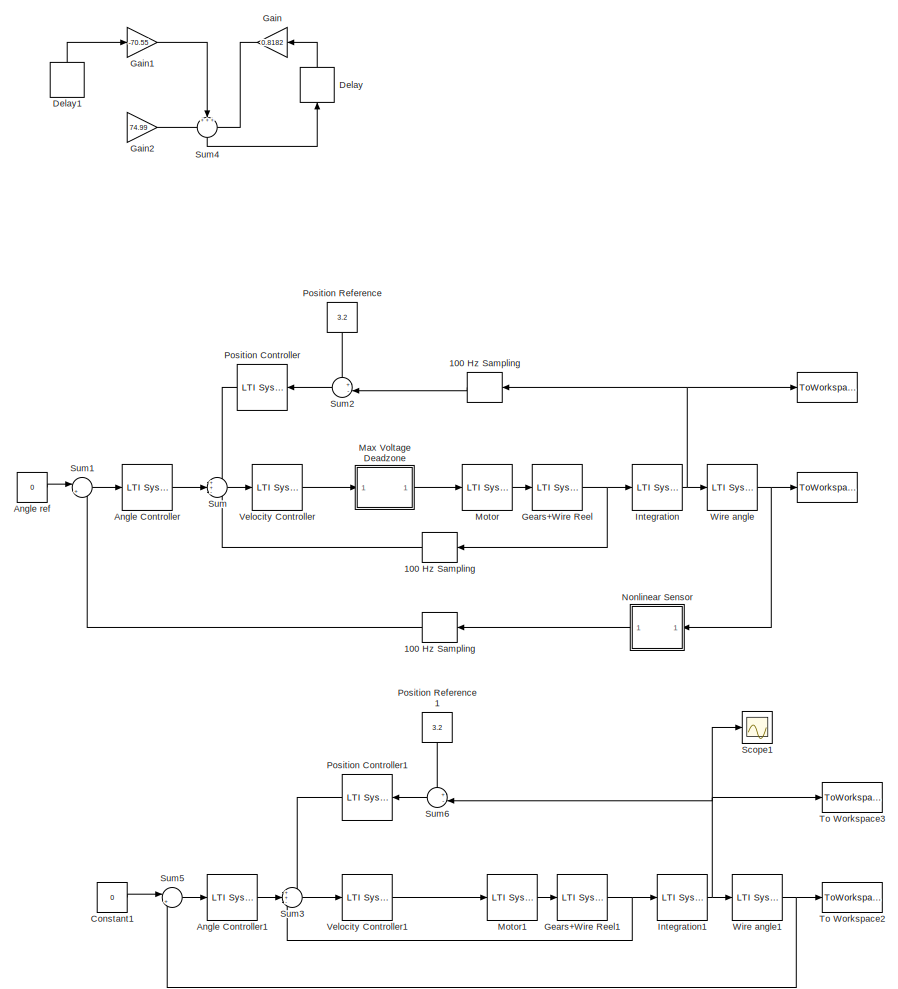
[diagram: root canvas - part 1/3, top left region]
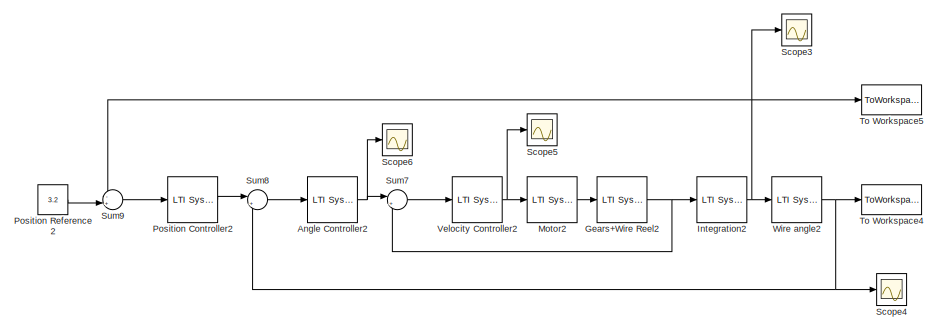
[diagram: root canvas - part 2/3, middle right region]
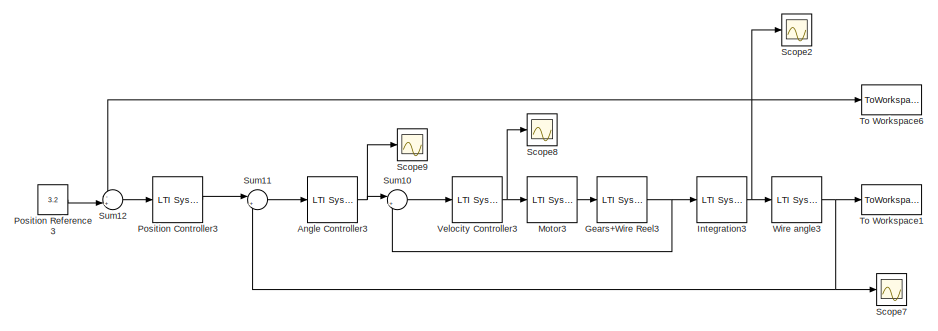
[diagram: root canvas - part 3/3, bottom left region]
MODEL slx_9e25c3253794
KIND model
CONFIG AbsTol = auto
CONFIG FixedStep = .01
CONFIG MaxStep = auto
CONFIG MinStep = auto
CONFIG RelTol = 1e-3
CONFIG SampleTimeConstraint = Unconstrained
CONFIG Solver = ode3
CONFIG SolverMode = Auto
CONFIG SolverName = ode3
CONFIG StartTime = 0.0
CONFIG StopTime = 30
BLOCK [ToWorkspace]   
  FixptAsFi = on
  MaxDataPoints = inf
  Ports = [1]
  SampleTime = -1
  Save2DSignal = 3-D array (concatenate along third dimension)
  SaveFormat = Timeseries
  VariableName = Angle
BLOCK [ToWorkspace]    
  FixptAsFi = on
  MaxDataPoints = inf
  Ports = [1]
  SampleTime = -1
  Save2DSignal = 3-D array (concatenate along third dimension)
  SaveFormat = Timeseries
  VariableName = Position
BLOCK [ZeroOrderHold] 100 Hz Sampling 
  SampleTime = .01
BLOCK [ZeroOrderHold] 100 Hz Sampling  
  SampleTime = .01
BLOCK [ZeroOrderHold] 100 Hz Sampling   
  SampleTime = .01
BLOCK [Reference] Angle Controller  REF=cstblocks/LTI System
  IC = []
  Ports = [1, 1]
  SourceBlock = cstblocks/LTI System
  SourceType = LTI Block
  sys = Ctheta
BLOCK [Reference] Angle Controller1  REF=cstblocks/LTI System
  IC = []
  Ports = [1, 1]
  SourceBlock = cstblocks/LTI System
  SourceType = LTI Block
  sys = Ctheta
BLOCK [Reference] Angle Controller2  REF=cstblocks/LTI System
  IC = []
  Ports = [1, 1]
  SourceBlock = cstblocks/LTI System
  SourceType = LTI Block
  sys = Ctheta
BLOCK [Reference] Angle Controller3  REF=cstblocks/LTI System
  IC = []
  Ports = [1, 1]
  SourceBlock = cstblocks/LTI System
  SourceType = LTI Block
  sys = Ctheta
BLOCK [Constant] Angle ref
  Value = 0
BLOCK [Constant] Constant1
  Value = 0
BLOCK [Delay] Delay
  DelayLength = 1
  InputPortMap = u0
  Ports = [1, 1]
BLOCK [Delay] Delay1
  DelayLength = 1
  InputPortMap = u0
  Ports = [1, 1]
BLOCK [Gain] Gain
  Gain = 0.8182
  OutDataTypeStr = Inherit: Inherit via internal rule
  ParamDataTypeStr = Inherit: Inherit via internal rule
  SaturateOnIntegerOverflow = off
BLOCK [Gain] Gain1
  Gain = -70.55
  OutDataTypeStr = Inherit: Inherit via internal rule
  ParamDataTypeStr = Inherit: Inherit via internal rule
  SaturateOnIntegerOverflow = off
BLOCK [Gain] Gain2
  Gain = 74.99
  OutDataTypeStr = Inherit: Inherit via internal rule
  ParamDataTypeStr = Inherit: Inherit via internal rule
  SaturateOnIntegerOverflow = off
BLOCK [Reference] Gears+Wire Reel  REF=cstblocks/LTI System
  IC = []
  Ports = [1, 1]
  SourceBlock = cstblocks/LTI System
  SourceType = LTI Block
  sys = Grx*rrx
BLOCK [Reference] Gears+Wire Reel1  REF=cstblocks/LTI System
  IC = []
  Ports = [1, 1]
  SourceBlock = cstblocks/LTI System
  SourceType = LTI Block
  sys = Grx*rrx
BLOCK [Reference] Gears+Wire Reel2  REF=cstblocks/LTI System
  IC = []
  Ports = [1, 1]
  SourceBlock = cstblocks/LTI System
  SourceType = LTI Block
  sys = Grx*rrx
BLOCK [Reference] Gears+Wire Reel3  REF=cstblocks/LTI System
  IC = []
  Ports = [1, 1]
  SourceBlock = cstblocks/LTI System
  SourceType = LTI Block
  sys = Grx*rrx
BLOCK [Reference] Integration  REF=cstblocks/LTI System
  IC = []
  Ports = [1, 1]
  SourceBlock = cstblocks/LTI System
  SourceType = LTI Block
  sys = 1/s
BLOCK [Reference] Integration1  REF=cstblocks/LTI System
  IC = []
  Ports = [1, 1]
  SourceBlock = cstblocks/LTI System
  SourceType = LTI Block
  sys = 1/s
BLOCK [Reference] Integration2  REF=cstblocks/LTI System
  IC = []
  Ports = [1, 1]
  SourceBlock = cstblocks/LTI System
  SourceType = LTI Block
  sys = 1/s
BLOCK [Reference] Integration3  REF=cstblocks/LTI System
  IC = []
  Ports = [1, 1]
  SourceBlock = cstblocks/LTI System
  SourceType = LTI Block
  sys = 1/s
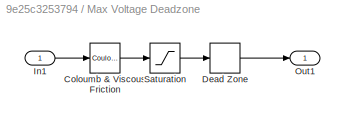
BLOCK [SubSystem] Max Voltage Deadzone
  Ports = [1, 1]
  RequestExecContextInheritance = off
BLOCK [Reference] Max Voltage Deadzone/Coloumb & Viscous Friction  REF=simulink/Discontinuities/Coulomb &
Viscous Friction
  Ports = [1, 1]
  SourceBlock = simulink/Discontinuities/Coulomb &\nViscous Friction
  SourceType = Coulombic and Viscous Friction
  gain = 1
  offset = [4.2]
BLOCK [DeadZone] Max Voltage Deadzone/Dead Zone
  LowerValue = -4.2
  UpperValue = 4.2
BLOCK [Inport] Max Voltage Deadzone/In1
  IconDisplay = Port number
BLOCK [Outport] Max Voltage Deadzone/Out1
  IconDisplay = Port number
BLOCK [Saturate] Max Voltage Deadzone/Saturation
  InputPortMap = u0
  LowerLimit = -12.5
  Ports = [1, 1]
  UpperLimit = 12.5
BLOCK [Reference] Motor  REF=cstblocks/LTI System
  IC = []
  Ports = [1, 1]
  SourceBlock = cstblocks/LTI System
  SourceType = LTI Block
  sys = Mx
BLOCK [Reference] Motor1  REF=cstblocks/LTI System
  IC = []
  Ports = [1, 1]
  SourceBlock = cstblocks/LTI System
  SourceType = LTI Block
  sys = Mx
BLOCK [Reference] Motor2  REF=cstblocks/LTI System
  IC = []
  Ports = [1, 1]
  SourceBlock = cstblocks/LTI System
  SourceType = LTI Block
  sys = Mx
BLOCK [Reference] Motor3  REF=cstblocks/LTI System
  IC = []
  Ports = [1, 1]
  SourceBlock = cstblocks/LTI System
  SourceType = LTI Block
  sys = Mx
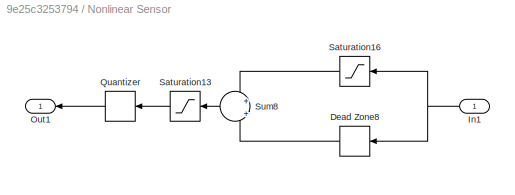
BLOCK [SubSystem] Nonlinear Sensor
  Ports = [1, 1]
  RequestExecContextInheritance = off
BLOCK [DeadZone] Nonlinear Sensor/Dead Zone8
  LowerValue = -0.3387
  UpperValue = 0.3227
BLOCK [Inport] Nonlinear Sensor/In1
  IconDisplay = Port number
BLOCK [Outport] Nonlinear Sensor/Out1
  IconDisplay = Port number
BLOCK [Quantizer] Nonlinear Sensor/Quantizer
  QuantizationInterval = 0.001
BLOCK [Saturate] Nonlinear Sensor/Saturation13
  InputPortMap = u0
  LowerLimit = -0.68
  Ports = [1, 1]
  UpperLimit = 0.664
BLOCK [Saturate] Nonlinear Sensor/Saturation16
  InputPortMap = u0
  LowerLimit = -0.1787
  Ports = [1, 1]
  UpperLimit = .1627
BLOCK [Sum] Nonlinear Sensor/Sum8
  IconShape = round
  InputSameDT = off
  Inputs = +|+
  OutDataTypeStr = Inherit: Inherit via internal rule
  Ports = [2, 1]
  SaturateOnIntegerOverflow = off
BLOCK [Reference] Position Controller  REF=cstblocks/LTI System
  IC = []
  Ports = [1, 1]
  SourceBlock = cstblocks/LTI System
  SourceType = LTI Block
  sys = Cx
BLOCK [Reference] Position Controller1  REF=cstblocks/LTI System
  IC = []
  Ports = [1, 1]
  SourceBlock = cstblocks/LTI System
  SourceType = LTI Block
  sys = Cx
BLOCK [Reference] Position Controller2  REF=cstblocks/LTI System
  IC = []
  Ports = [1, 1]
  SourceBlock = cstblocks/LTI System
  SourceType = LTI Block
  sys = Cx
BLOCK [Reference] Position Controller3  REF=cstblocks/LTI System
  IC = []
  Ports = [1, 1]
  SourceBlock = cstblocks/LTI System
  SourceType = LTI Block
  sys = Cx
BLOCK [Constant] Position Reference
  Value = 3.2
BLOCK [Constant] Position Reference1
  Value = 3.2
BLOCK [Constant] Position Reference2
  Value = 3.2
BLOCK [Constant] Position Reference3
  Value = 3.2
BLOCK [Scope] Scope1
  Floating = off
  NumInputPorts = 1
  Ports = [1]
  SaveName = ScopeData1
BLOCK [Scope] Scope2
  Floating = off
  NumInputPorts = 1
  Ports = [1]
  SaveName = ScopeData2
BLOCK [Scope] Scope3
  Floating = off
  NumInputPorts = 1
  Ports = [1]
BLOCK [Scope] Scope4
  Floating = off
  NumInputPorts = 1
  Ports = [1]
  SaveName = ScopeData3
BLOCK [Scope] Scope5
  Floating = off
  NumInputPorts = 1
  Ports = [1]
  SaveName = ScopeData4
  ZoomMode = yonly
BLOCK [Scope] Scope6
  Floating = off
  NumInputPorts = 1
  Ports = [1]
  SaveName = ScopeData5
  ZoomMode = yonly
BLOCK [Scope] Scope7
  Floating = off
  NumInputPorts = 1
  Ports = [1]
  SaveName = ScopeData6
BLOCK [Scope] Scope8
  Floating = off
  NumInputPorts = 1
  Ports = [1]
  SaveName = ScopeData7
  ZoomMode = yonly
BLOCK [Scope] Scope9
  Floating = off
  NumInputPorts = 1
  Ports = [1]
  SaveName = ScopeData8
  ZoomMode = yonly
BLOCK [Sum] Sum
  IconShape = round
  InputSameDT = off
  Inputs = ++-
  OutDataTypeStr = Inherit: Inherit via internal rule
  Ports = [3, 1]
  SaturateOnIntegerOverflow = off
BLOCK [Sum] Sum1
  IconShape = round
  InputSameDT = off
  Inputs = |+-
  OutDataTypeStr = Inherit: Inherit via internal rule
  Ports = [2, 1]
  SaturateOnIntegerOverflow = off
BLOCK [Sum] Sum10
  IconShape = round
  InputSameDT = off
  Inputs = |+-
  OutDataTypeStr = Inherit: Inherit via internal rule
  Ports = [2, 1]
  SaturateOnIntegerOverflow = off
BLOCK [Sum] Sum11
  IconShape = round
  InputSameDT = off
  Inputs = |++
  OutDataTypeStr = Inherit: Inherit via internal rule
  Ports = [2, 1]
  SaturateOnIntegerOverflow = off
BLOCK [Sum] Sum12
  IconShape = round
  InputSameDT = off
  Inputs = -+|
  OutDataTypeStr = Inherit: Inherit via internal rule
  Ports = [2, 1]
  SaturateOnIntegerOverflow = off
BLOCK [Sum] Sum2
  IconShape = round
  InputSameDT = off
  Inputs = +-|
  OutDataTypeStr = Inherit: Inherit via internal rule
  Ports = [2, 1]
  SaturateOnIntegerOverflow = off
BLOCK [Sum] Sum3
  IconShape = round
  InputSameDT = off
  Inputs = ++-
  OutDataTypeStr = Inherit: Inherit via internal rule
  Ports = [3, 1]
  SaturateOnIntegerOverflow = off
BLOCK [Sum] Sum4
  IconShape = round
  InputSameDT = off
  Inputs = +++
  OutDataTypeStr = Inherit: Inherit via internal rule
  Ports = [3, 1]
  SaturateOnIntegerOverflow = off
BLOCK [Sum] Sum5
  IconShape = round
  InputSameDT = off
  Inputs = |+-
  OutDataTypeStr = Inherit: Inherit via internal rule
  Ports = [2, 1]
  SaturateOnIntegerOverflow = off
BLOCK [Sum] Sum6
  IconShape = round
  InputSameDT = off
  Inputs = +-|
  OutDataTypeStr = Inherit: Inherit via internal rule
  Ports = [2, 1]
  SaturateOnIntegerOverflow = off
BLOCK [Sum] Sum7
  IconShape = round
  InputSameDT = off
  Inputs = |+-
  OutDataTypeStr = Inherit: Inherit via internal rule
  Ports = [2, 1]
  SaturateOnIntegerOverflow = off
BLOCK [Sum] Sum8
  IconShape = round
  InputSameDT = off
  Inputs = |+-
  OutDataTypeStr = Inherit: Inherit via internal rule
  Ports = [2, 1]
  SaturateOnIntegerOverflow = off
BLOCK [Sum] Sum9
  IconShape = round
  InputSameDT = off
  Inputs = -+|
  OutDataTypeStr = Inherit: Inherit via internal rule
  Ports = [2, 1]
  SaturateOnIntegerOverflow = off
BLOCK [ToWorkspace] To Workspace1
  FixptAsFi = on
  MaxDataPoints = inf
  Ports = [1]
  SampleTime = -1
  Save2DSignal = 3-D array (concatenate along third dimension)
  SaveFormat = Timeseries
  VariableName = Angle3
BLOCK [ToWorkspace] To Workspace2
  FixptAsFi = on
  MaxDataPoints = inf
  Ports = [1]
  SampleTime = -1
  Save2DSignal = 3-D array (concatenate along third dimension)
  SaveFormat = Timeseries
  VariableName = Angle1
BLOCK [ToWorkspace] To Workspace3
  FixptAsFi = on
  MaxDataPoints = inf
  Ports = [1]
  SampleTime = -1
  Save2DSignal = 3-D array (concatenate along third dimension)
  SaveFormat = Timeseries
  VariableName = Position1
BLOCK [ToWorkspace] To Workspace4
  FixptAsFi = on
  MaxDataPoints = inf
  Ports = [1]
  SampleTime = -1
  Save2DSignal = 3-D array (concatenate along third dimension)
  SaveFormat = Timeseries
  VariableName = Angle2
BLOCK [ToWorkspace] To Workspace5
  FixptAsFi = on
  MaxDataPoints = inf
  Ports = [1]
  SampleTime = -1
  Save2DSignal = 3-D array (concatenate along third dimension)
  SaveFormat = Timeseries
  VariableName = Position2
BLOCK [ToWorkspace] To Workspace6
  FixptAsFi = on
  MaxDataPoints = inf
  Ports = [1]
  SampleTime = -1
  Save2DSignal = 3-D array (concatenate along third dimension)
  SaveFormat = Timeseries
  VariableName = Position3
BLOCK [Reference] Velocity Controller  REF=cstblocks/LTI System
  IC = []
  Ports = [1, 1]
  SourceBlock = cstblocks/LTI System
  SourceType = LTI Block
  sys = CV
BLOCK [Reference] Velocity Controller1  REF=cstblocks/LTI System
  IC = []
  Ports = [1, 1]
  SourceBlock = cstblocks/LTI System
  SourceType = LTI Block
  sys = CV
BLOCK [Reference] Velocity Controller2  REF=cstblocks/LTI System
  IC = []
  Ports = [1, 1]
  SourceBlock = cstblocks/LTI System
  SourceType = LTI Block
  sys = CV
BLOCK [Reference] Velocity Controller3  REF=cstblocks/LTI System
  IC = []
  Ports = [1, 1]
  SourceBlock = cstblocks/LTI System
  SourceType = LTI Block
  sys = CV
BLOCK [Reference] Wire angle  REF=cstblocks/LTI System
  IC = []
  Ports = [1, 1]
  SourceBlock = cstblocks/LTI System
  SourceType = LTI Block
  sys = W
BLOCK [Reference] Wire angle1  REF=cstblocks/LTI System
  IC = []
  Ports = [1, 1]
  SourceBlock = cstblocks/LTI System
  SourceType = LTI Block
  sys = W
BLOCK [Reference] Wire angle2  REF=cstblocks/LTI System
  IC = []
  Ports = [1, 1]
  SourceBlock = cstblocks/LTI System
  SourceType = LTI Block
  sys = W
BLOCK [Reference] Wire angle3  REF=cstblocks/LTI System
  IC = []
  Ports = [1, 1]
  SourceBlock = cstblocks/LTI System
  SourceType = LTI Block
  sys = W
LINE 100 Hz Sampling   :1 -> Sum1:2
LINE 100 Hz Sampling  :1 -> Sum:3
LINE 100 Hz Sampling :1 -> Sum2:2
LINE Angle Controller1:1 -> Sum3:2
NET Angle Controller2:1 -> Scope6:1, Sum7:1
NET Angle Controller3:1 -> Scope9:1, Sum10:1
LINE Angle Controller:1 -> Sum:2
LINE Angle ref:1 -> Sum1:1
LINE Constant1:1 -> Sum5:1
LINE Delay1:1 -> Gain1:1
LINE Delay:1 -> Gain:1
LINE Gain1:1 -> Sum4:2
LINE Gain2:1 -> Sum4:1
LINE Gain:1 -> Sum4:3
NET Gears+Wire Reel1:1 -> Integration1:1, Sum3:3
NET Gears+Wire Reel2:1 -> Integration2:1, Sum7:2
NET Gears+Wire Reel3:1 -> Integration3:1, Sum10:2
NET Gears+Wire Reel:1 -> 100 Hz Sampling  :1, Integration:1
NET Integration1:1 -> Scope1:1, Sum6:2, To Workspace3:1, Wire angle1:1
NET Integration2:1 -> Scope3:1, Sum9:1, To Workspace5:1, Wire angle2:1
NET Integration3:1 -> Scope2:1, Sum12:1, To Workspace6:1, Wire angle3:1
NET Integration:1 ->    :1, 100 Hz Sampling :1, Wire angle:1
LINE Max Voltage Deadzone/Coloumb & Viscous Friction:1 -> Max Voltage Deadzone/Saturation:1
LINE Max Voltage Deadzone/Dead Zone:1 -> Max Voltage Deadzone/Out1:1
LINE Max Voltage Deadzone/In1:1 -> Max Voltage Deadzone/Coloumb & Viscous Friction:1
LINE Max Voltage Deadzone/Saturation:1 -> Max Voltage Deadzone/Dead Zone:1
LINE Max Voltage Deadzone:1 -> Motor:1
LINE Motor1:1 -> Gears+Wire Reel1:1
LINE Motor2:1 -> Gears+Wire Reel2:1
LINE Motor3:1 -> Gears+Wire Reel3:1
LINE Motor:1 -> Gears+Wire Reel:1
LINE Nonlinear Sensor/Dead Zone8:1 -> Nonlinear Sensor/Sum8:2
NET Nonlinear Sensor/In1:1 -> Nonlinear Sensor/Dead Zone8:1, Nonlinear Sensor/Saturation16:1
LINE Nonlinear Sensor/Quantizer:1 -> Nonlinear Sensor/Out1:1
LINE Nonlinear Sensor/Saturation13:1 -> Nonlinear Sensor/Quantizer:1
LINE Nonlinear Sensor/Saturation16:1 -> Nonlinear Sensor/Sum8:1
LINE Nonlinear Sensor/Sum8:1 -> Nonlinear Sensor/Saturation13:1
LINE Nonlinear Sensor:1 -> 100 Hz Sampling   :1
LINE Position Controller1:1 -> Sum3:1
LINE Position Controller2:1 -> Sum8:1
LINE Position Controller3:1 -> Sum11:1
LINE Position Controller:1 -> Sum:1
LINE Position Reference1:1 -> Sum6:1
LINE Position Reference2:1 -> Sum9:2
LINE Position Reference3:1 -> Sum12:2
LINE Position Reference:1 -> Sum2:1
LINE Sum10:1 -> Velocity Controller3:1
LINE Sum11:1 -> Angle Controller3:1
LINE Sum12:1 -> Position Controller3:1
LINE Sum1:1 -> Angle Controller:1
LINE Sum2:1 -> Position Controller:1
LINE Sum3:1 -> Velocity Controller1:1
LINE Sum4:1 -> Delay:1
LINE Sum5:1 -> Angle Controller1:1
LINE Sum6:1 -> Position Controller1:1
LINE Sum7:1 -> Velocity Controller2:1
LINE Sum8:1 -> Angle Controller2:1
LINE Sum9:1 -> Position Controller2:1
LINE Sum:1 -> Velocity Controller:1
LINE Velocity Controller1:1 -> Motor1:1
NET Velocity Controller2:1 -> Motor2:1, Scope5:1
NET Velocity Controller3:1 -> Motor3:1, Scope8:1
LINE Velocity Controller:1 -> Max Voltage Deadzone:1
NET Wire angle1:1 -> Sum5:2, To Workspace2:1
NET Wire angle2:1 -> Scope4:1, Sum8:2, To Workspace4:1
NET Wire angle3:1 -> Scope7:1, Sum11:2, To Workspace1:1
NET Wire angle:1 ->   :1, Nonlinear Sensor:1
note: NET lines group one-source signal fan-out (src -> all destinations, sorted); 1:1 wires keep LINE
